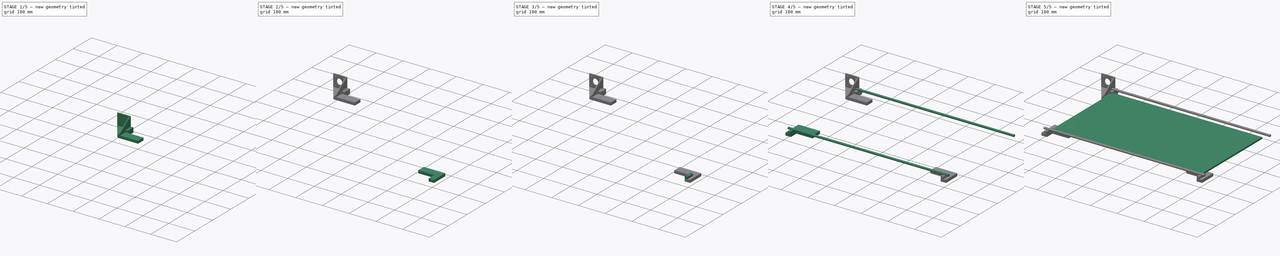
[diagram: build sequence overview — one tinted view per stage of 5, left to right]
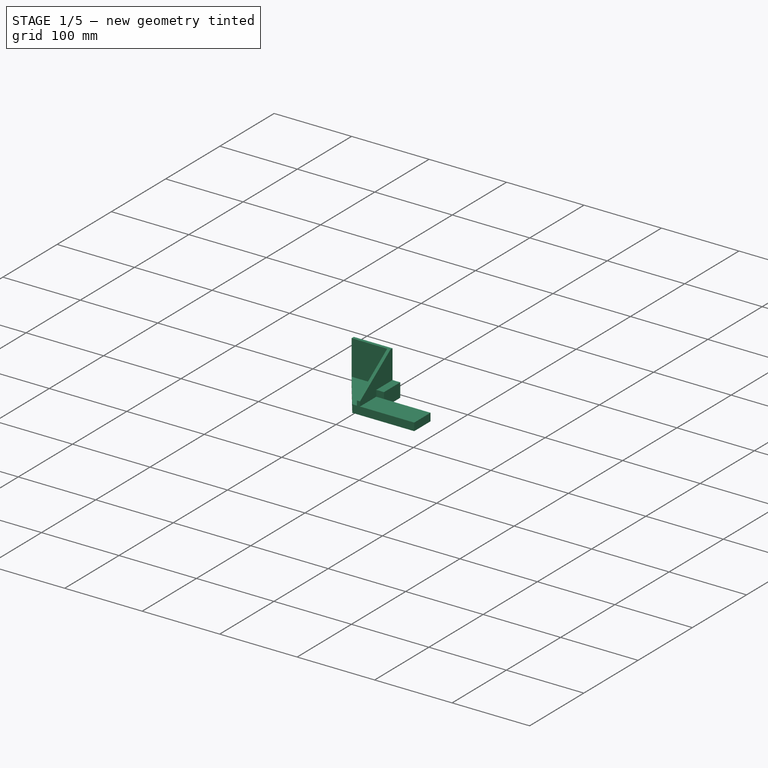
[diagram: stage 1 of 5 — iso view after this stage's code; geometry added in this stage tinted green]
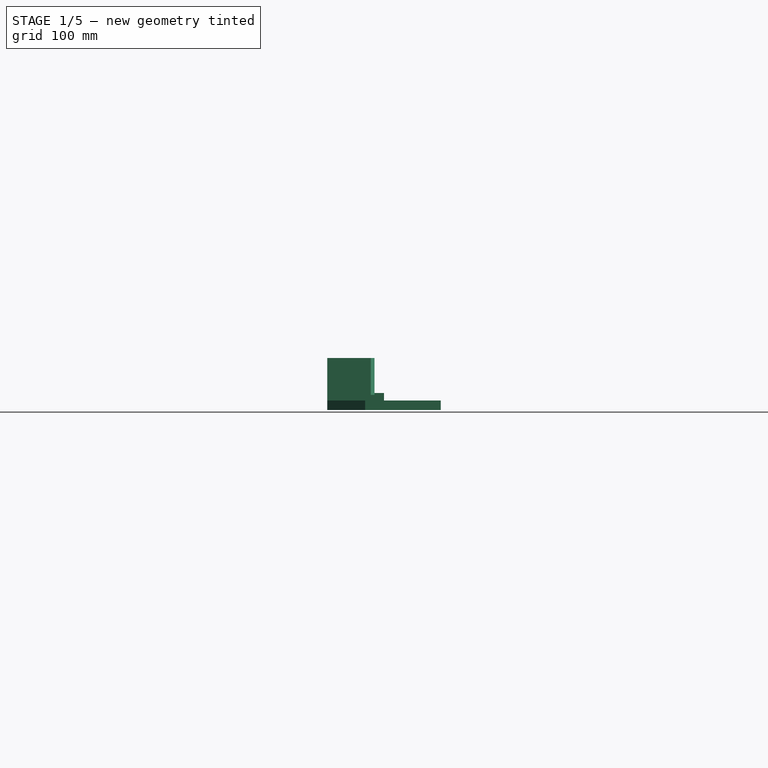
[diagram: stage 1 of 5 — front view after this stage's code; geometry added in this stage tinted green]
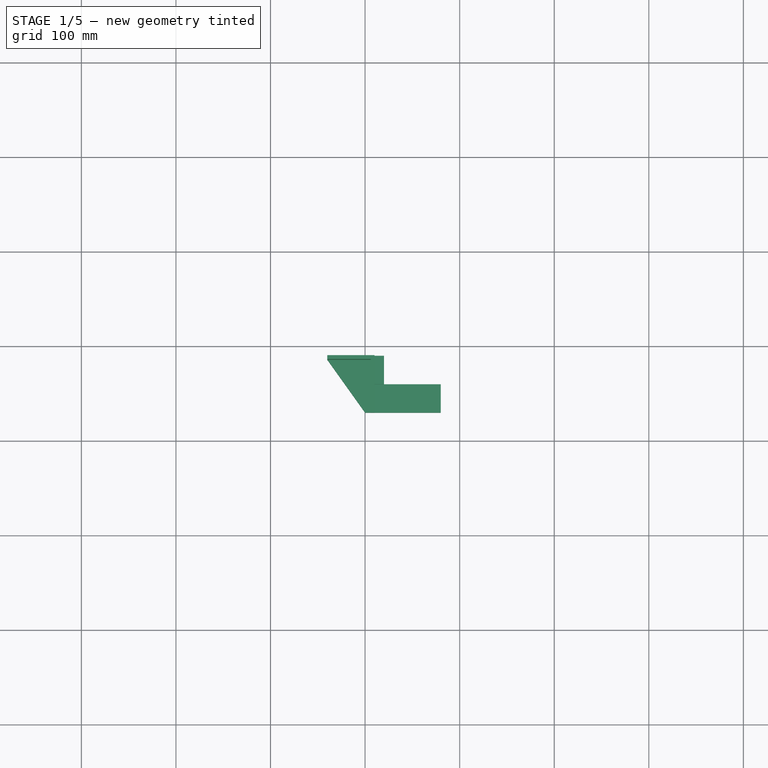
[diagram: stage 1 of 5 — top view after this stage's code; geometry added in this stage tinted green]
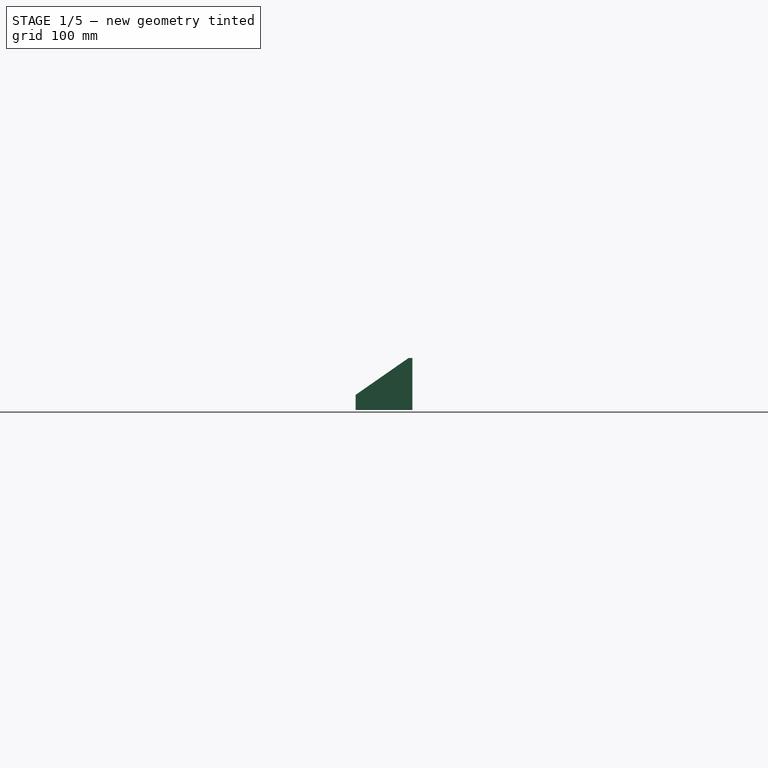
[diagram: stage 1 of 5 — right view after this stage's code; geometry added in this stage tinted green]
FCSTD DOCUMENT
Label: cncxy
objects: Sketcher::SketchObject×20, PartDesign::Pad×10, PartDesign::Pocket×10
note: 50 computed .brp shape members not serialized (recipe doc carries the construction recipe); baked Part::Feature solids carry a one-line shape summary decoded from their .brp

FEATURE [Sketcher::SketchObject] Sketch013
  Placement = pos=(0,0,0) rot=(1,0,0;3.14159rad)
  sketch-geometry (7):
    g0: LineSegment StartX=-220 StartY=-130 StartZ=0 EndX=-220 EndY=-160 EndZ=0
    g1: LineSegment StartX=-220 StartY=-160 StartZ=0 EndX=-280 EndY=-160 EndZ=0
    g2: LineSegment StartX=-280 StartY=-160 StartZ=0 EndX=-280 EndY=-190 EndZ=0
    g3: LineSegment StartX=-280 StartY=-190 StartZ=0 EndX=-340 EndY=-190 EndZ=0
    g4: LineSegment StartX=-300 StartY=-130 StartZ=0 EndX=-220 EndY=-130 EndZ=0
    g5: LineSegment StartX=-300 StartY=-130 StartZ=0 EndX=-340 EndY=-186 EndZ=0
    g6: LineSegment StartX=-340 StartY=-186 StartZ=0 EndX=-340 EndY=-190 EndZ=0
  constraints (21):
    c: Vertical(g0)
    c: Coincident(g0,g1)
    c: Horizontal(g1)
    c: Coincident(g1,g2)
    c: Vertical(g2)
    c: Coincident(g2,g3)
    c: Horizontal(g3)
    c: Horizontal(g4)
    c: Coincident(g4,g0)
    c: DistanceY(g0) = -30
    c: DistanceX(g1) = -60
    c: DistanceX(g3) = -60
    c: DistanceY(g2) = -30
    c: DistanceX(g1) = -280
    c: DistanceY(g1) = -160
    c: DistanceX(g4) = 80
    c: Coincident(g5,g4)
    c: Coincident(g6,g5)
    c: Coincident(g6,g3)
    c: Vertical(g6)
    c: DistanceY(g6) = -4
FEATURE [PartDesign::Pad] Pad007
  Length = 10
  MirroredExtent = false
  Sketch = -> Sketch013
FEATURE [Sketcher::SketchObject] Sketch014
  Support = -> Pad007 [Face8]
  sketch-geometry (4):
    g0: LineSegment StartX=-280 StartY=190 StartZ=0 EndX=-290 EndY=190 EndZ=0
    g1: LineSegment StartX=-290 StartY=190 StartZ=0 EndX=-290 EndY=160 EndZ=0
    g2: LineSegment StartX=-290 StartY=160 StartZ=0 EndX=-280 EndY=160 EndZ=0
    g3: LineSegment StartX=-280 StartY=160 StartZ=0 EndX=-280 EndY=190 EndZ=0
  constraints (12):
    c: Coincident(g0,g1)
    c: Coincident(g1,g2)
    c: Coincident(g2,g3)
    c: Coincident(g3,g0)
    c: Horizontal(g0)
    c: Horizontal(g2)
    c: Vertical(g1)
    c: Vertical(g3)
    c: DistanceX(g2) = -280
    c: DistanceY(g2) = 160
    c: DistanceY(g3) = 30
    c: DistanceX(g0) = -10
FEATURE [PartDesign::Pad] Pad008
  Length = 8
  MirroredExtent = false
  Sketch = -> Sketch014
FEATURE [Sketcher::SketchObject] Sketch015
  Support = -> Pad008 [Face4]
  sketch-geometry (6):
    g0: LineSegment StartX=-340 StartY=190 StartZ=0 EndX=-290 EndY=190 EndZ=0
    g1: LineSegment StartX=-340 StartY=186 StartZ=0 EndX=-340 EndY=190 EndZ=0
    g2: LineSegment StartX=-340 StartY=186 StartZ=0 EndX=-294 EndY=186 EndZ=0
    g3: LineSegment StartX=-294 StartY=186 StartZ=0 EndX=-294 EndY=130 EndZ=0
    g4: LineSegment StartX=-294 StartY=130 StartZ=0 EndX=-290 EndY=130 EndZ=0
    g5: LineSegment StartX=-290 StartY=130 StartZ=0 EndX=-290 EndY=190 EndZ=0
  constraints (18):
    c: Coincident(g1,g0)
    c: Horizontal(g0)
    c: Vertical(g1)
    c: DistanceX(g0) = 50
    c: DistanceY(g1) = 4
    c: DistanceX(g0) = -340
    c: DistanceY(g0) = 190
    c: Coincident(g2,g1)
    c: Horizontal(g2)
    c: Coincident(g2,g3)
    c: Vertical(g3)
    c: Coincident(g3,g4)
    c: Coincident(g4,g5)
    c: Vertical(g5)
    c: Coincident(g0,g5)
    c: Horizontal(g4)
    c: DistanceY(g5) = 60
    c: DistanceX(g4) = 4
FEATURE [PartDesign::Pad] Pad009
  Length = 45
  MirroredExtent = false
  Sketch = -> Sketch015
FEATURE [Sketcher::SketchObject] Sketch016
  Placement = pos=(-290,0,0) rot=(0.57735,0.57735,0.57735;2.0944rad)
  Support = -> Pad009 [Face11]
  sketch-geometry (3):
    g0: LineSegment StartX=130 StartY=6 StartZ=0 EndX=186 EndY=45 EndZ=0
    g1: LineSegment StartX=186 StartY=45 StartZ=0 EndX=130 EndY=45 EndZ=0
    g2: LineSegment StartX=130 StartY=45 StartZ=0 EndX=130 EndY=6 EndZ=0
  constraints (9):
    c: Coincident(g1,g0)
    c: Horizontal(g1)
    c: Coincident(g2,g1)
    c: Coincident(g2,g0)
    c: Vertical(g2)
    c: DistanceY(g2) = -39
    c: DistanceX(g1) = -56
    c: DistanceX(g0) = 130
    c: DistanceY(g0) = 6
FEATURE [PartDesign::Pocket] Pocket006
  Length = 5
  Sketch = -> Sketch016
  Type = 0
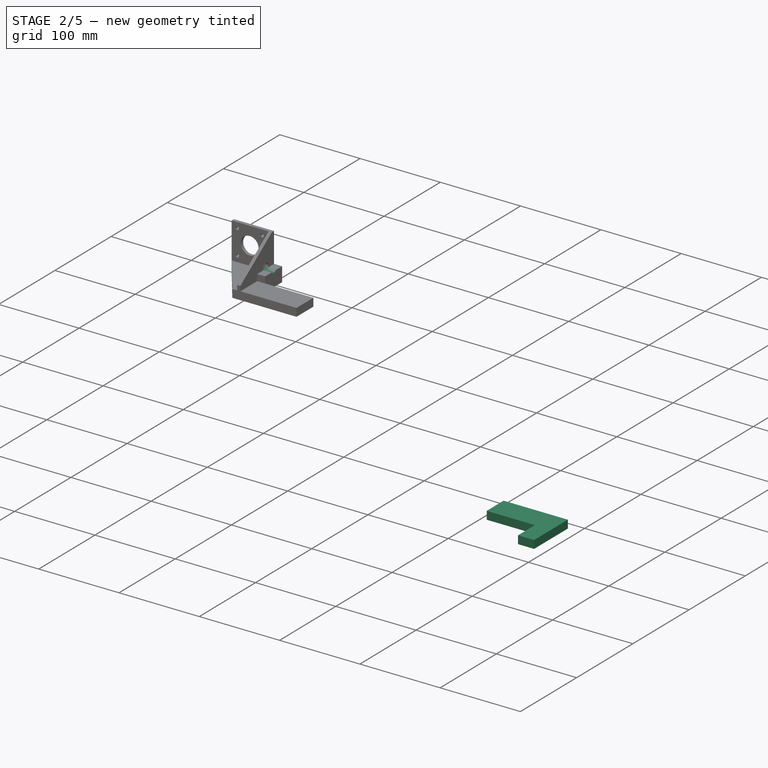
[diagram: stage 2 of 5 — iso view after this stage's code; geometry added in this stage tinted green]
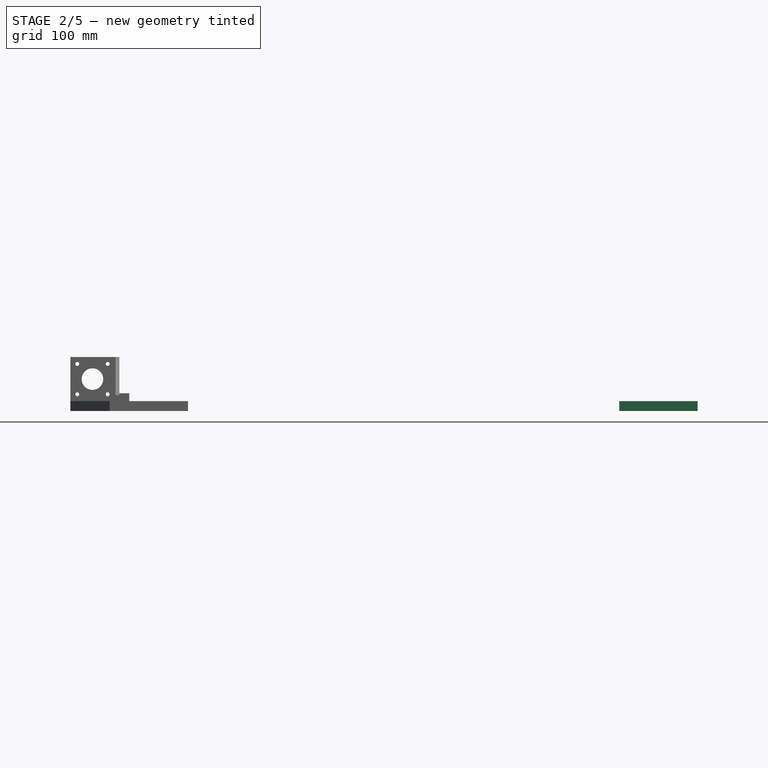
[diagram: stage 2 of 5 — front view after this stage's code; geometry added in this stage tinted green]
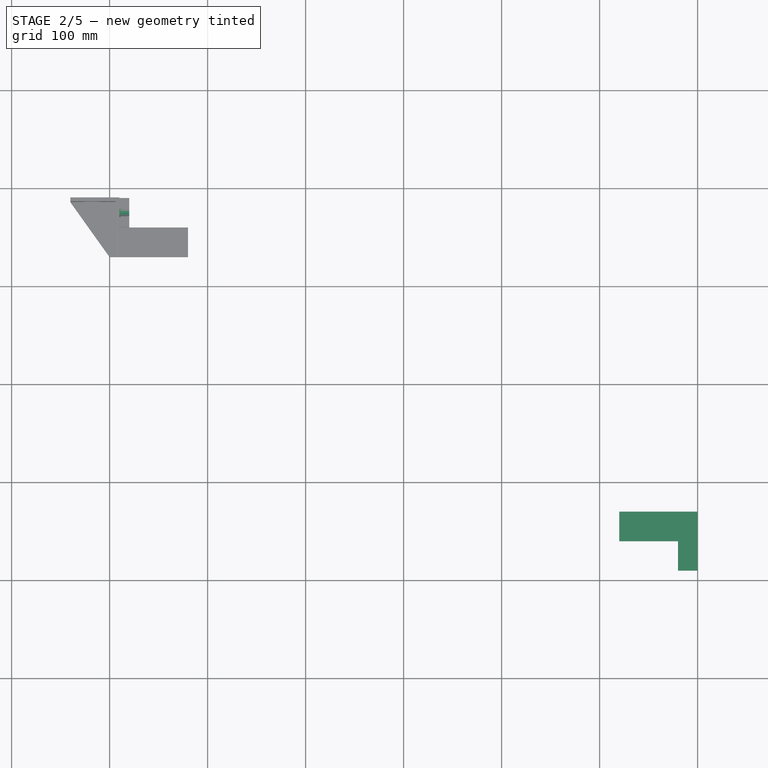
[diagram: stage 2 of 5 — top view after this stage's code; geometry added in this stage tinted green]
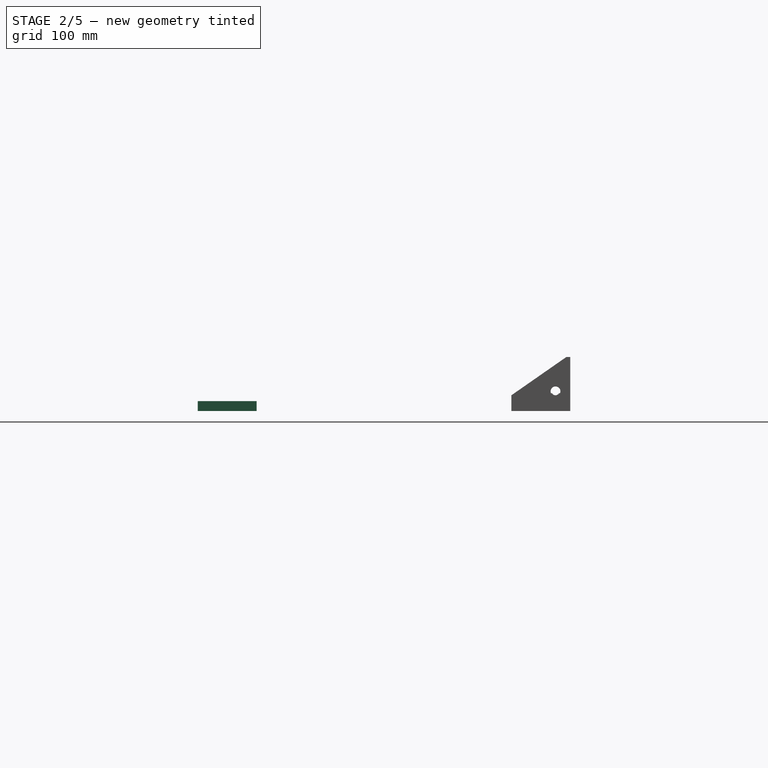
[diagram: stage 2 of 5 — right view after this stage's code; geometry added in this stage tinted green]
FEATURE [Sketcher::SketchObject] Sketch008
  Placement = pos=(0,0,0) rot=(1,0,0;3.14159rad)
  sketch-geometry (6):
    g0: LineSegment StartX=280 StartY=160 StartZ=0 EndX=220 EndY=160 EndZ=0
    g1: LineSegment StartX=220 StartY=160 StartZ=0 EndX=220 EndY=130 EndZ=0
    g2: LineSegment StartX=220 StartY=130 StartZ=0 EndX=300 EndY=130 EndZ=0
    g3: LineSegment StartX=300 StartY=130 StartZ=0 EndX=300 EndY=190 EndZ=0
    g4: LineSegment StartX=300 StartY=190 StartZ=0 EndX=280 EndY=190 EndZ=0
    g5: LineSegment StartX=280 StartY=190 StartZ=0 EndX=280 EndY=160 EndZ=0
  constraints (18):
    c: Horizontal(g0)
    c: Coincident(g0,g1)
    c: Vertical(g1)
    c: Coincident(g1,g2)
    c: Horizontal(g2)
    c: Coincident(g2,g3)
    c: Vertical(g3)
    c: Coincident(g3,g4)
    c: Horizontal(g4)
    c: Coincident(g4,g5)
    c: Coincident(g5,g0)
    c: Vertical(g5)
    c: DistanceX(g4) = -20
    c: DistanceY(g3) = 60
    c: DistanceX(g0) = -60
    c: DistanceX(g0) = 280
    c: DistanceY(g0) = 160
    c: DistanceY(g5) = -30
FEATURE [PartDesign::Pad] Pad005
  Length = 10
  MirroredExtent = false
  Sketch = -> Sketch008
FEATURE [Sketcher::SketchObject] Sketch017
  Placement = pos=(-290,0,0) rot=(0.57735,0.57735,0.57735;2.0944rad)
  Support = -> Pocket006 [Face11]
  sketch-geometry (1):
    g0: Circle CenterX=175 CenterY=10 CenterZ=0 NormalX=0 NormalY=0 NormalZ=1 Radius=5
  constraints (3):
    c: Radius(g0) = 5
    c: DistanceX(g0) = 175
    c: DistanceY(g0) = 10
FEATURE [PartDesign::Pocket] Pocket007
  Length = 5
  Sketch = -> Sketch017
  Type = 0
FEATURE [Sketcher::SketchObject] Sketch018
  Placement = pos=(-280,0,0) rot=(0.57735,0.57735,0.57735;2.0944rad)
  Support = -> Pocket007 [Face17]
  sketch-geometry (1):
    g0: Circle CenterX=175 CenterY=10 CenterZ=0 NormalX=0 NormalY=0 NormalZ=1 Radius=4
  constraints (3):
    c: DistanceX(g0) = 175
    c: DistanceY(g0) = 10
    c: Radius(g0) = 4
FEATURE [PartDesign::Pocket] Pocket008
  Length = 10
  Sketch = -> Sketch018
  Type = 0
FEATURE [Sketcher::SketchObject] Sketch019
  Placement = pos=(0,190,0) rot=(0,0.707107,0.707107;3.14159rad)
  Support = -> Pocket008 [Face21]
  sketch-geometry (5):
    g0: Circle CenterX=317.5 CenterY=22.5 CenterZ=0 NormalX=0 NormalY=0 NormalZ=1 Radius=11
    g1: Circle CenterX=302 CenterY=38 CenterZ=0 NormalX=0 NormalY=0 NormalZ=1 Radius=2
    g2: Circle CenterX=333 CenterY=38 CenterZ=0 NormalX=0 NormalY=0 NormalZ=1 Radius=2
    g3: Circle CenterX=302 CenterY=7 CenterZ=0 NormalX=0 NormalY=0 NormalZ=1 Radius=2
    g4: Circle CenterX=333 CenterY=7 CenterZ=0 NormalX=0 NormalY=0 NormalZ=1 Radius=2
  constraints (15):
    c: Radius(g0) = 11
    c: DistanceX(g0) = 317.5
    c: DistanceY(g0) = 22.5
    c: DistanceY(g3,g0) = 15.5
    c: DistanceX(g3,g0) = 15.5
    c: DistanceX(g1,g3) = 0
    c: DistanceY(g1,g3) = -31
    c: DistanceY(g1,g2) = 0
    c: DistanceX(g4,g3) = -31
    c: DistanceY(g4,g2) = 31
    c: Radius(g2) = 2
    c: Equal(g2,g1)
    c: Equal(g1,g3)
    c: Equal(g3,g4)
    c: DistanceX(g2,g1) = -31
FEATURE [PartDesign::Pocket] Pocket009  label="BackLeft"
  Length = 5
  Sketch = -> Sketch019
  Type = 0
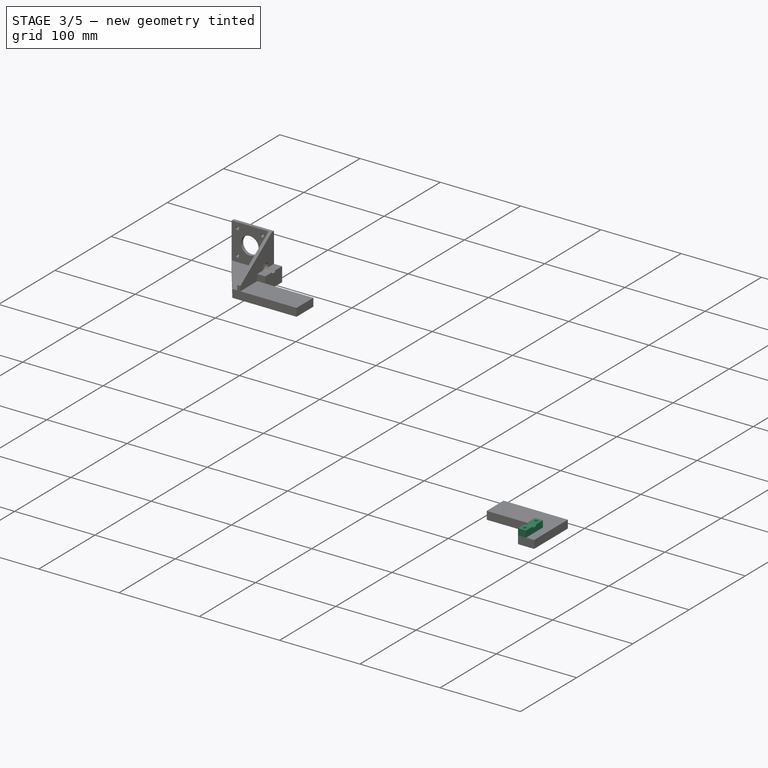
[diagram: stage 3 of 5 — iso view after this stage's code; geometry added in this stage tinted green]
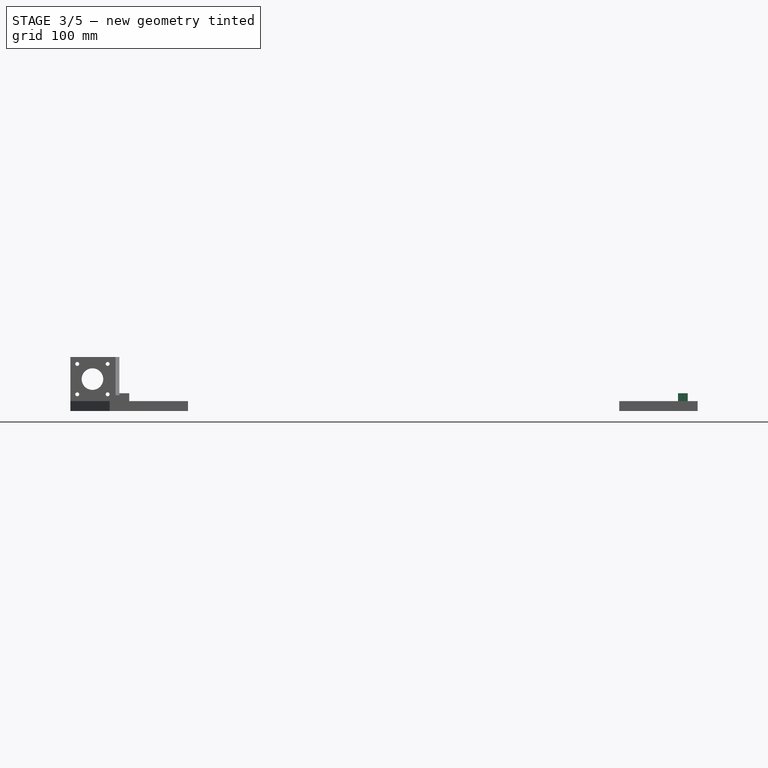
[diagram: stage 3 of 5 — front view after this stage's code; geometry added in this stage tinted green]
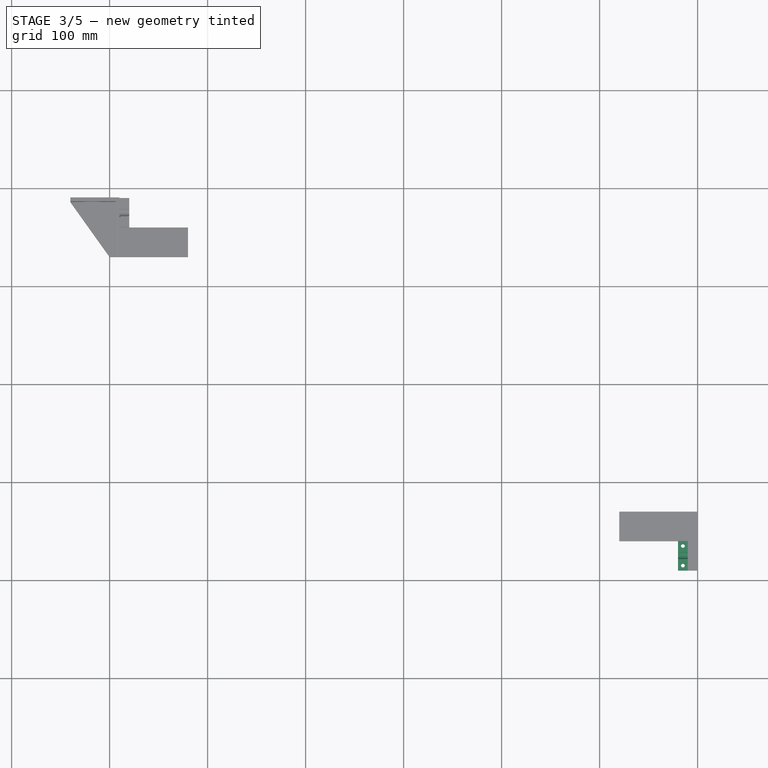
[diagram: stage 3 of 5 — top view after this stage's code; geometry added in this stage tinted green]
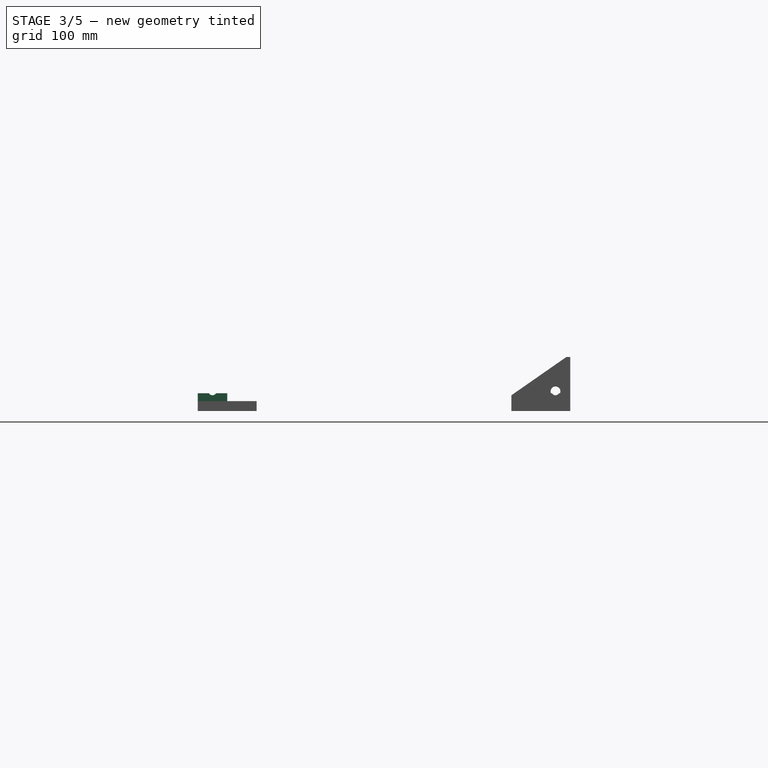
[diagram: stage 3 of 5 — right view after this stage's code; geometry added in this stage tinted green]
FEATURE [Sketcher::SketchObject] Sketch009
  Support = -> Pad005 [Face7]
  sketch-geometry (4):
    g0: LineSegment StartX=280 StartY=-160 StartZ=0 EndX=290 EndY=-160 EndZ=0
    g1: LineSegment StartX=290 StartY=-160 StartZ=0 EndX=290 EndY=-190 EndZ=0
    g2: LineSegment StartX=290 StartY=-190 StartZ=0 EndX=280 EndY=-190 EndZ=0
    g3: LineSegment StartX=280 StartY=-190 StartZ=0 EndX=280 EndY=-160 EndZ=0
  constraints (12):
    c: Coincident(g0,g1)
    c: Coincident(g1,g2)
    c: Coincident(g2,g3)
    c: Coincident(g3,g0)
    c: Horizontal(g0)
    c: Horizontal(g2)
    c: Vertical(g1)
    c: Vertical(g3)
    c: DistanceX(g0) = 280
    c: DistanceY(g0) = -160
    c: DistanceY(g3) = 30
    c: DistanceX(g2) = -10
FEATURE [PartDesign::Pad] Pad006
  Length = 8
  MirroredExtent = false
  Sketch = -> Sketch009
FEATURE [Sketcher::SketchObject] Sketch010
  Placement = pos=(280,0,0) rot=(0.57735,-0.57735,-0.57735;2.0944rad)
  Support = -> Pad006 [Face11]
  sketch-geometry (1):
    g0: Circle CenterX=175 CenterY=10 CenterZ=0 NormalX=0 NormalY=0 NormalZ=1 Radius=4
  constraints (3):
    c: Radius(g0) = 4
    c: DistanceX(g0) = 175
    c: DistanceY(g0) = 10
FEATURE [PartDesign::Pocket] Pocket003
  Length = 10
  Sketch = -> Sketch010
  Type = 0
FEATURE [Sketcher::SketchObject] Sketch011
  Placement = pos=(0,0,8) rot=(0,0,1;0rad)
  Support = -> Pocket003 [Face13]
  sketch-geometry (1):
    g0: Circle CenterX=285 CenterY=-185 CenterZ=0 NormalX=0 NormalY=0 NormalZ=1 Radius=2
  constraints (3):
    c: Radius(g0) = 2
    c: DistanceX(g0) = 285
    c: DistanceY(g0) = -185
FEATURE [PartDesign::Pocket] Pocket004
  Length = 20
  Sketch = -> Sketch011
  Type = 0
FEATURE [Sketcher::SketchObject] Sketch012
  Placement = pos=(0,0,8) rot=(0,0,1;0rad)
  Support = -> Pocket004 [Face13]
  sketch-geometry (1):
    g0: Circle CenterX=285 CenterY=-165 CenterZ=0 NormalX=0 NormalY=0 NormalZ=1 Radius=2
  constraints (3):
    c: Radius(g0) = 2
    c: DistanceX(g0) = 285
    c: DistanceY(g0) = -165
FEATURE [PartDesign::Pocket] Pocket005  label="FrontRight"
  Length = 20
  Sketch = -> Sketch012
  Type = 0
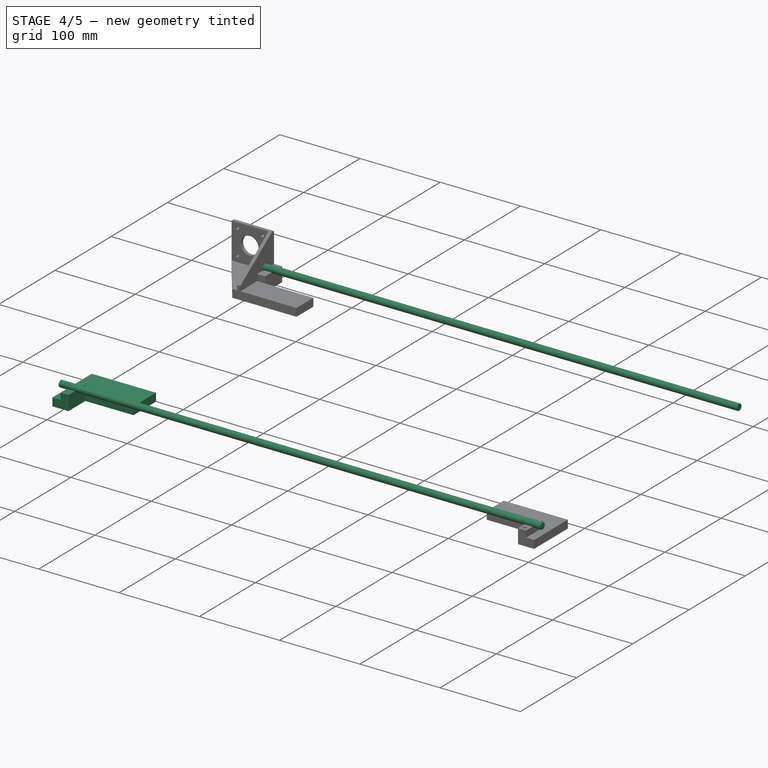
[diagram: stage 4 of 5 — iso view after this stage's code; geometry added in this stage tinted green]
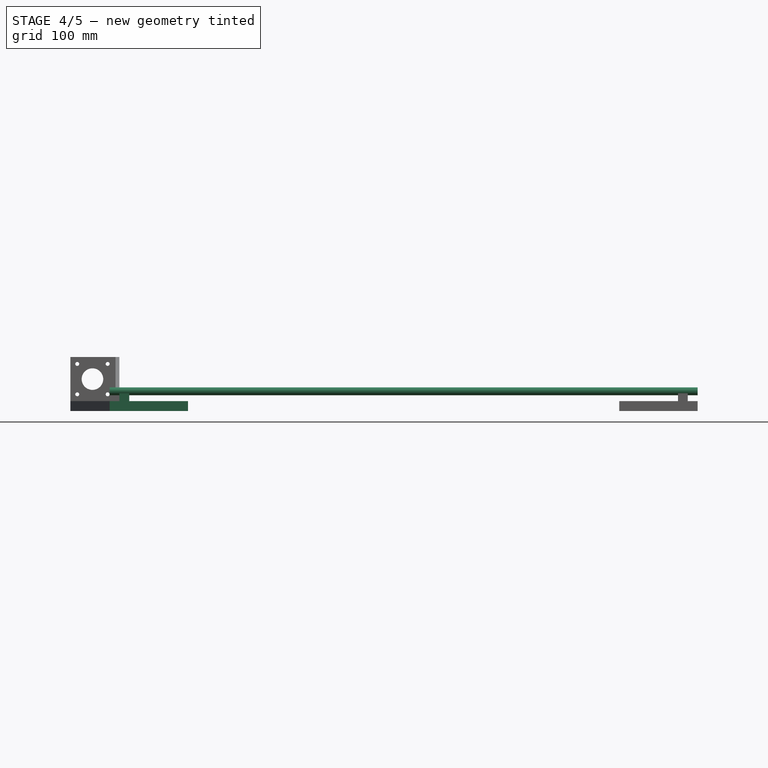
[diagram: stage 4 of 5 — front view after this stage's code; geometry added in this stage tinted green]
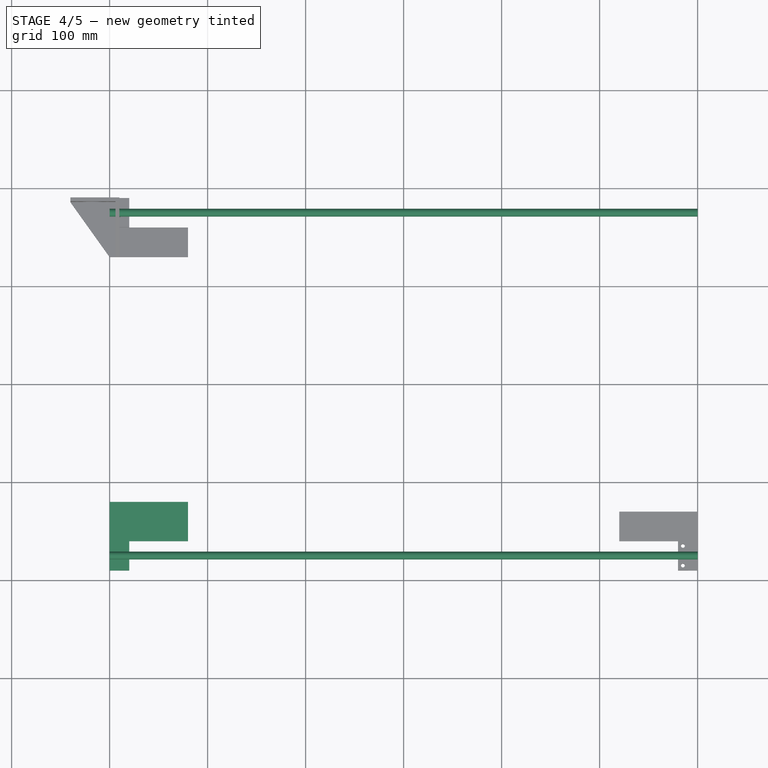
[diagram: stage 4 of 5 — top view after this stage's code; geometry added in this stage tinted green]
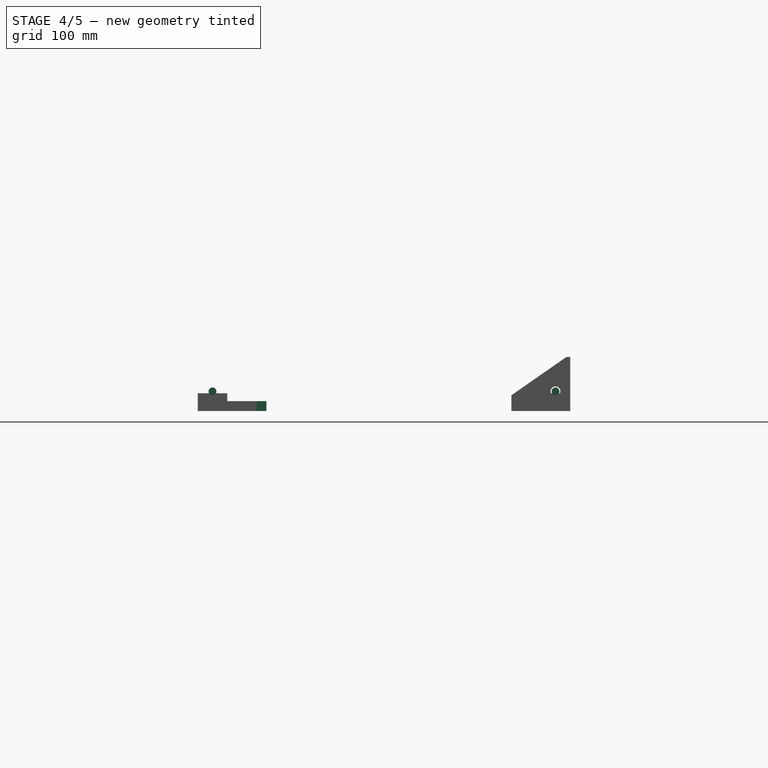
[diagram: stage 4 of 5 — right view after this stage's code; geometry added in this stage tinted green]
FEATURE [Sketcher::SketchObject] Sketch001
  Placement = pos=(0,0,0) rot=(1,0,0;3.14159rad)
  sketch-geometry (6):
    g0: LineSegment StartX=-300 StartY=190 StartZ=0 EndX=-280 EndY=190 EndZ=0
    g1: LineSegment StartX=-280 StartY=190 StartZ=0 EndX=-280 EndY=160 EndZ=0
    g2: LineSegment StartX=-280 StartY=160 StartZ=0 EndX=-220 EndY=160 EndZ=0
    g3: LineSegment StartX=-220 StartY=160 StartZ=0 EndX=-220 EndY=120 EndZ=0
    g4: LineSegment StartX=-220 StartY=120 StartZ=0 EndX=-300 EndY=120 EndZ=0
    g5: LineSegment StartX=-300 StartY=120 StartZ=0 EndX=-300 EndY=190 EndZ=0
  constraints (18):
    c: Horizontal(g0)
    c: Coincident(g0,g1)
    c: Vertical(g1)
    c: Coincident(g1,g2)
    c: Horizontal(g2)
    c: Coincident(g2,g3)
    c: Vertical(g3)
    c: Coincident(g3,g4)
    c: Horizontal(g4)
    c: Coincident(g4,g5)
    c: Coincident(g5,g0)
    c: Vertical(g5)
    c: DistanceX(g0) = 20
    c: DistanceX(g2) = 60
    c: DistanceY(g1) = -30
    c: DistanceY(g3) = -40
    c: DistanceX(g3) = -220
    c: DistanceY(g3) = 120
FEATURE [PartDesign::Pad] Pad001
  Length = 10
  MirroredExtent = false
  Sketch = -> Sketch001
FEATURE [Sketcher::SketchObject] Sketch002
  Support = -> Pad001 [Face7]
  sketch-geometry (4):
    g0: LineSegment StartX=-290 StartY=-160 StartZ=0 EndX=-280 EndY=-160 EndZ=0
    g1: LineSegment StartX=-280 StartY=-160 StartZ=0 EndX=-280 EndY=-190 EndZ=0
    g2: LineSegment StartX=-280 StartY=-190 StartZ=0 EndX=-290 EndY=-190 EndZ=0
    g3: LineSegment StartX=-290 StartY=-190 StartZ=0 EndX=-290 EndY=-160 EndZ=0
  constraints (12):
    c: Coincident(g0,g1)
    c: Coincident(g1,g2)
    c: Coincident(g2,g3)
    c: Coincident(g3,g0)
    c: Horizontal(g0)
    c: Horizontal(g2)
    c: Vertical(g1)
    c: Vertical(g3)
    c: DistanceY(g3) = 30
    c: DistanceX(g0) = 10
    c: DistanceX(g2) = -290
    c: DistanceY(g2) = -190
FEATURE [PartDesign::Pad] Pad002
  Length = 8
  MirroredExtent = false
  Sketch = -> Sketch002
FEATURE [Sketcher::SketchObject] Sketch006
  Placement = pos=(-300,0,0) rot=(0.57735,0.57735,0.57735;2.0944rad)
  sketch-geometry (1):
    g0: Circle CenterX=-175 CenterY=10 CenterZ=0 NormalX=0 NormalY=0 NormalZ=1 Radius=4
  constraints (3):
    c: Radius(g0) = 4
    c: DistanceX(g0) = -175
    c: DistanceY(g0) = 10
FEATURE [PartDesign::Pad] Pad003  label="FrontRod"
  Length = 600
  MirroredExtent = false
  Sketch = -> Sketch006
FEATURE [Sketcher::SketchObject] Sketch007
  Placement = pos=(-300,0,0) rot=(0.57735,0.57735,0.57735;2.0944rad)
  sketch-geometry (1):
    g0: Circle CenterX=175 CenterY=10 CenterZ=0 NormalX=0 NormalY=0 NormalZ=1 Radius=4
  constraints (3):
    c: Radius(g0) = 4
    c: DistanceX(g0) = 175
    c: DistanceY(g0) = 10
FEATURE [PartDesign::Pad] Pad004  label="BackRod"
  Length = 600
  MirroredExtent = false
  Sketch = -> Sketch007
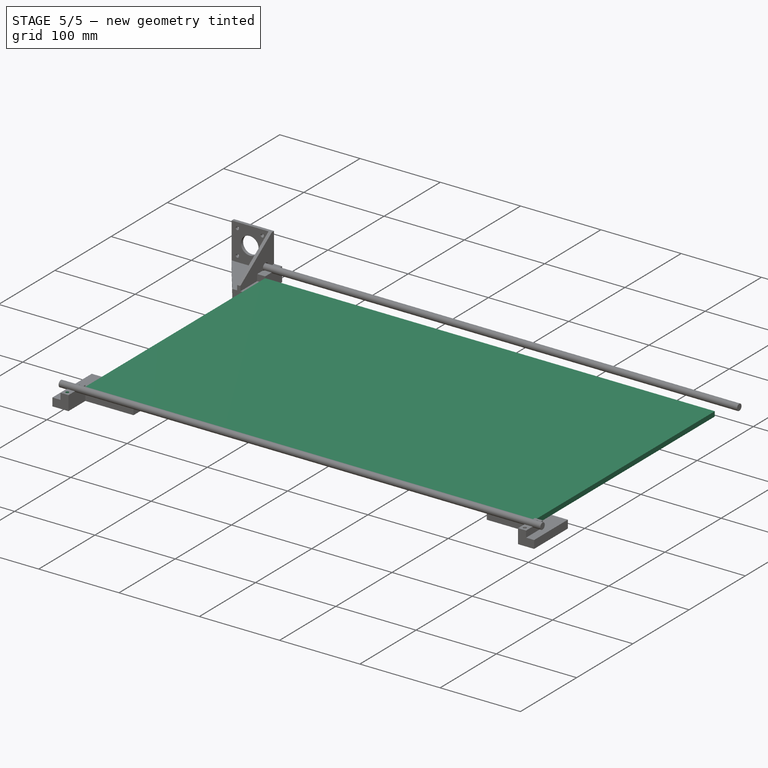
[diagram: stage 5 of 5 — iso view after this stage's code; geometry added in this stage tinted green]
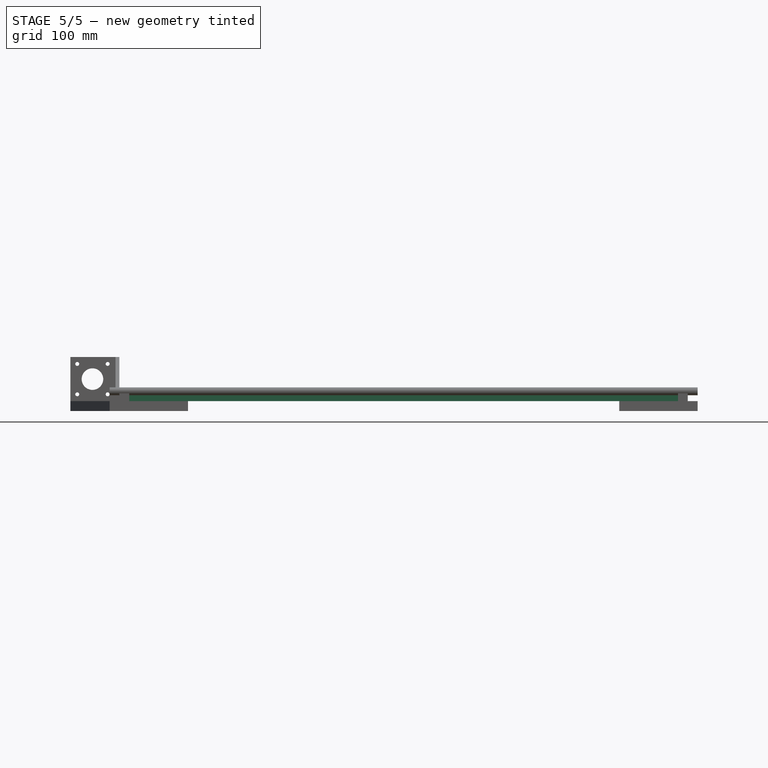
[diagram: stage 5 of 5 — front view after this stage's code; geometry added in this stage tinted green]
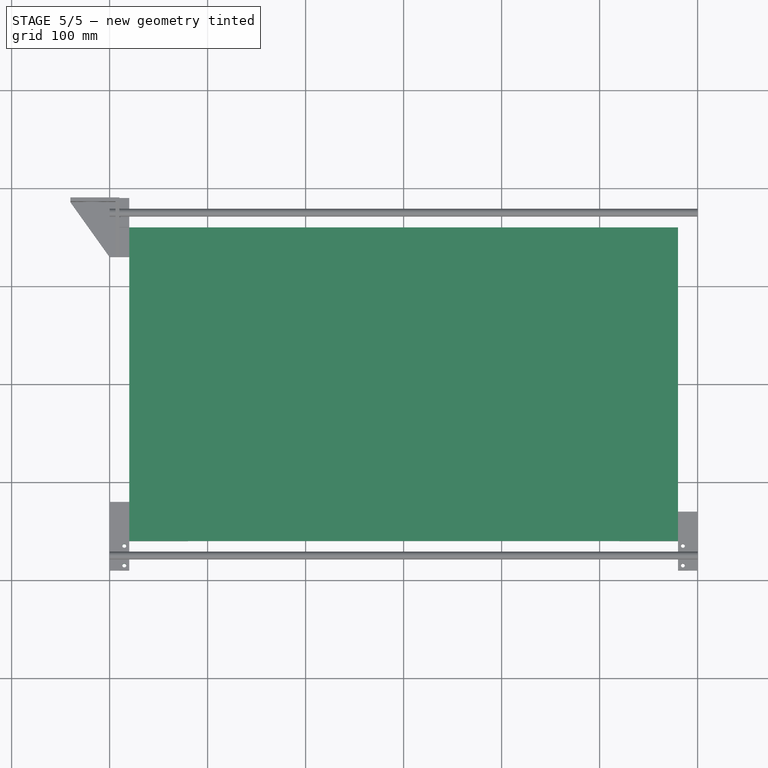
[diagram: stage 5 of 5 — top view after this stage's code; geometry added in this stage tinted green]
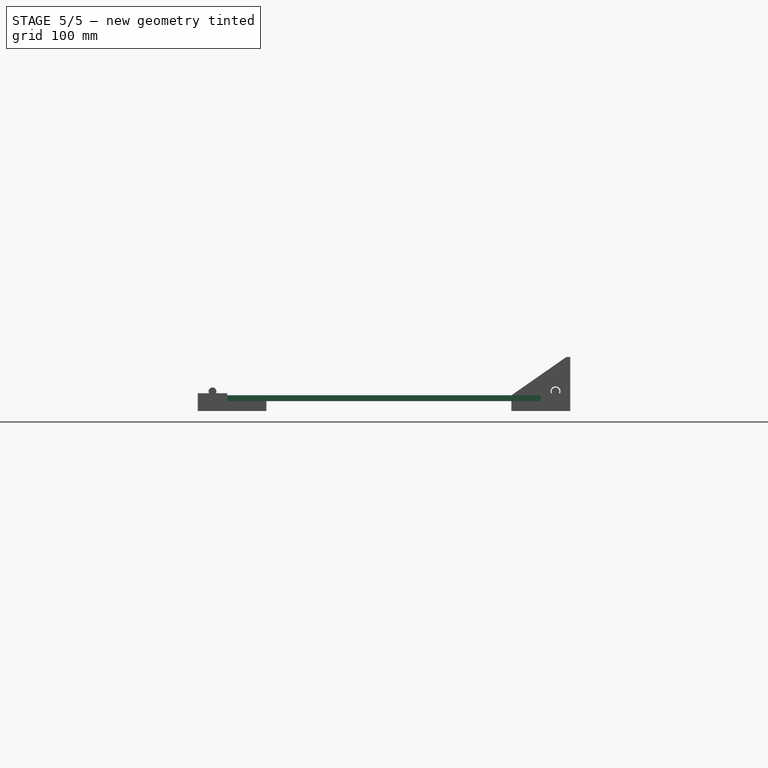
[diagram: stage 5 of 5 — right view after this stage's code; geometry added in this stage tinted green]
FEATURE [Sketcher::SketchObject] Sketch
  sketch-geometry (4):
    g0: LineSegment StartX=-280 StartY=160 StartZ=0 EndX=280 EndY=160 EndZ=0
    g1: LineSegment StartX=280 StartY=160 StartZ=0 EndX=280 EndY=-160 EndZ=0
    g2: LineSegment StartX=280 StartY=-160 StartZ=0 EndX=-280 EndY=-160 EndZ=0
    g3: LineSegment StartX=-280 StartY=-160 StartZ=0 EndX=-280 EndY=160 EndZ=0
  constraints (12):
    c: Coincident(g0,g1)
    c: Coincident(g1,g2)
    c: Coincident(g2,g3)
    c: Coincident(g3,g0)
    c: Horizontal(g0)
    c: Horizontal(g2)
    c: Vertical(g1)
    c: Vertical(g3)
    c: DistanceX(g0) = 560
    c: DistanceY(g3) = 320
    c: DistanceX(g0) = -280
    c: DistanceY(g0) = 160
FEATURE [PartDesign::Pad] Pad  label="Bed"
  Length = 6
  MirroredExtent = false
  Sketch = -> Sketch
FEATURE [Sketcher::SketchObject] Sketch003
  Placement = pos=(-280,0,0) rot=(0.57735,0.57735,0.57735;2.0944rad)
  Support = -> Pad002 [Face11]
  sketch-geometry (1):
    g0: Circle CenterX=-175 CenterY=10 CenterZ=0 NormalX=0 NormalY=0 NormalZ=1 Radius=4
  constraints (3):
    c: Radius(g0) = 4
    c: DistanceX(g0) = -175
    c: DistanceY(g0) = 10
FEATURE [PartDesign::Pocket] Pocket
  Length = 10
  Sketch = -> Sketch003
  Type = 0
FEATURE [Sketcher::SketchObject] Sketch004
  Placement = pos=(0,0,8) rot=(0,0,1;0rad)
  Support = -> Pocket [Face15]
  sketch-geometry (1):
    g0: Circle CenterX=-285 CenterY=-185 CenterZ=0 NormalX=0 NormalY=0 NormalZ=1 Radius=2
  constraints (3):
    c: Radius(g0) = 2
    c: DistanceX(g0) = -285
    c: DistanceY(g0) = -185
FEATURE [PartDesign::Pocket] Pocket001
  Length = 20
  Sketch = -> Sketch004
  Type = 0
FEATURE [Sketcher::SketchObject] Sketch005
  Placement = pos=(0,0,8) rot=(0,0,1;0rad)
  Support = -> Pocket001 [Face14]
  sketch-geometry (1):
    g0: Circle CenterX=-285 CenterY=-165 CenterZ=0 NormalX=0 NormalY=0 NormalZ=1 Radius=2
  constraints (3):
    c: Radius(g0) = 2
    c: DistanceX(g0) = -285
    c: DistanceY(g0) = -165
FEATURE [PartDesign::Pocket] Pocket002  label="FrontLeft"
  Length = 20
  Sketch = -> Sketch005
  Type = 0
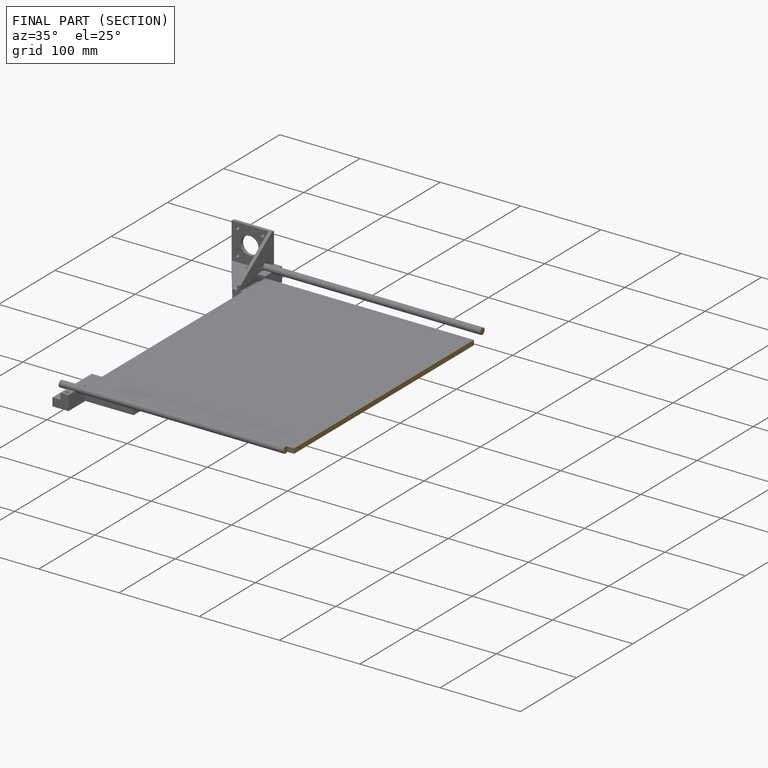
[diagram: finished part — half-section view (interior)]
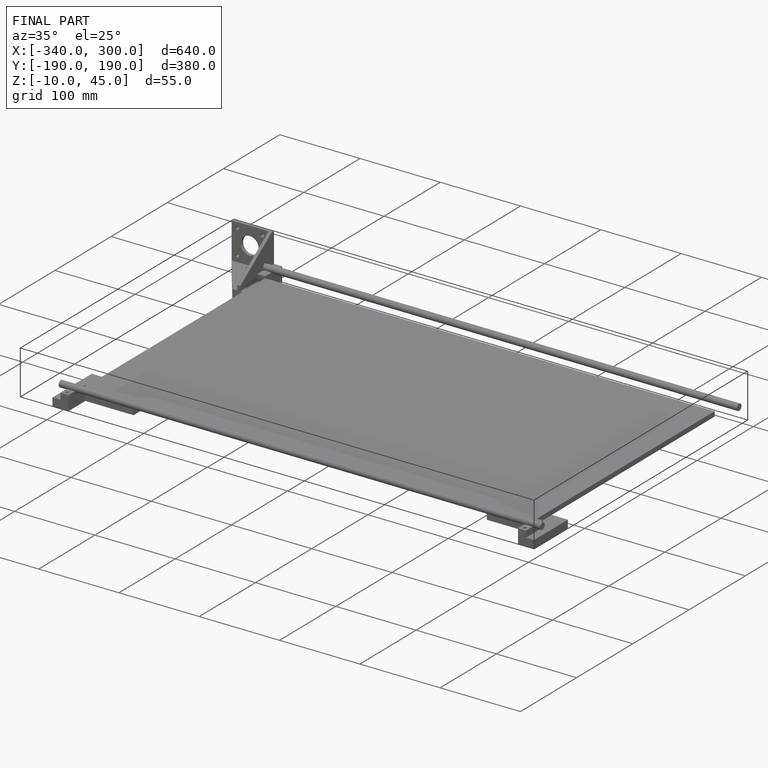
[diagram: finished part — iso view with bounding-box wireframe]
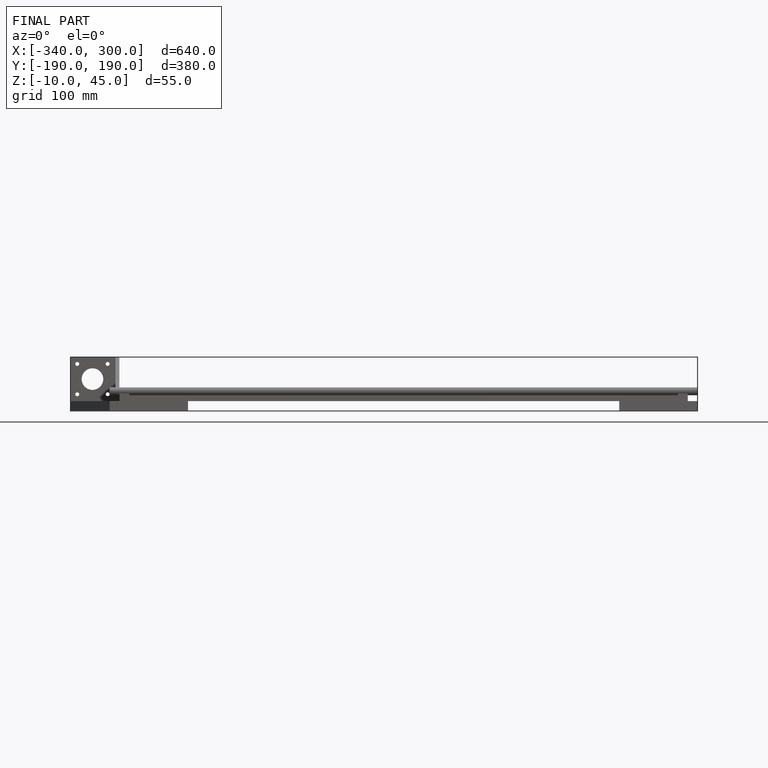
[diagram: finished part — front view with bounding-box wireframe]
